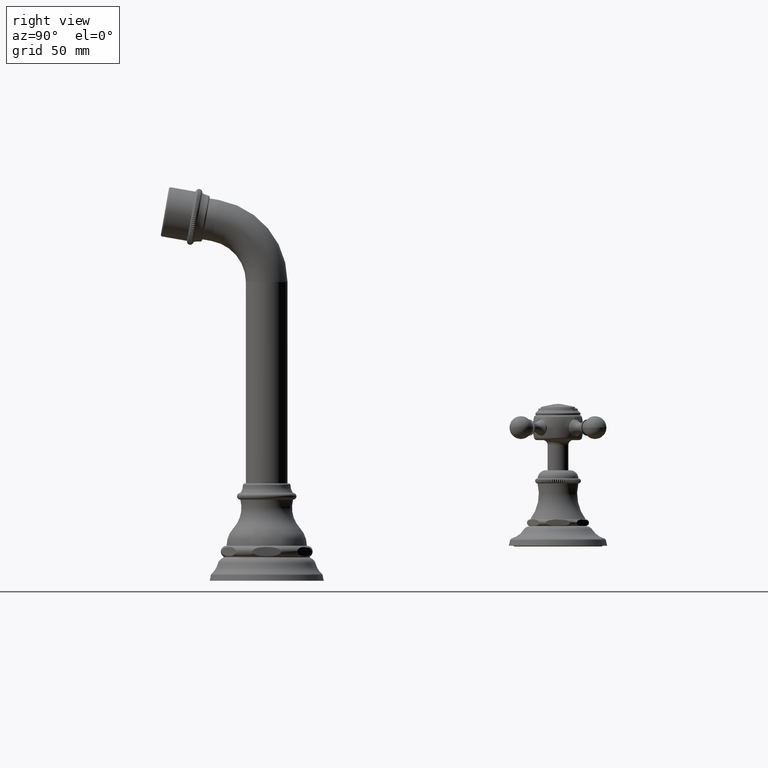
[diagram: clean part render]
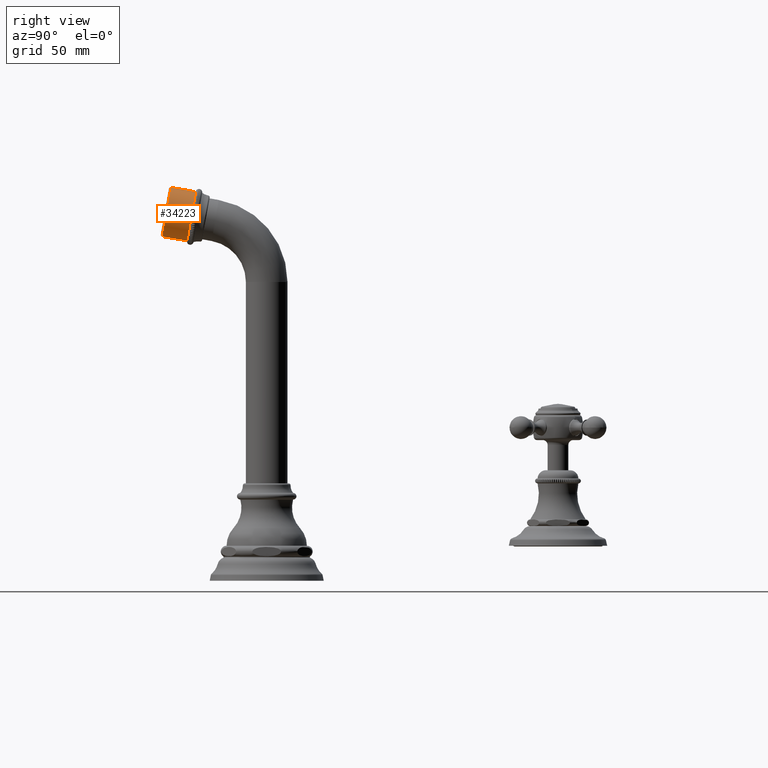
[diagram: same view with one face highlighted and labeled with its STEP entity id]
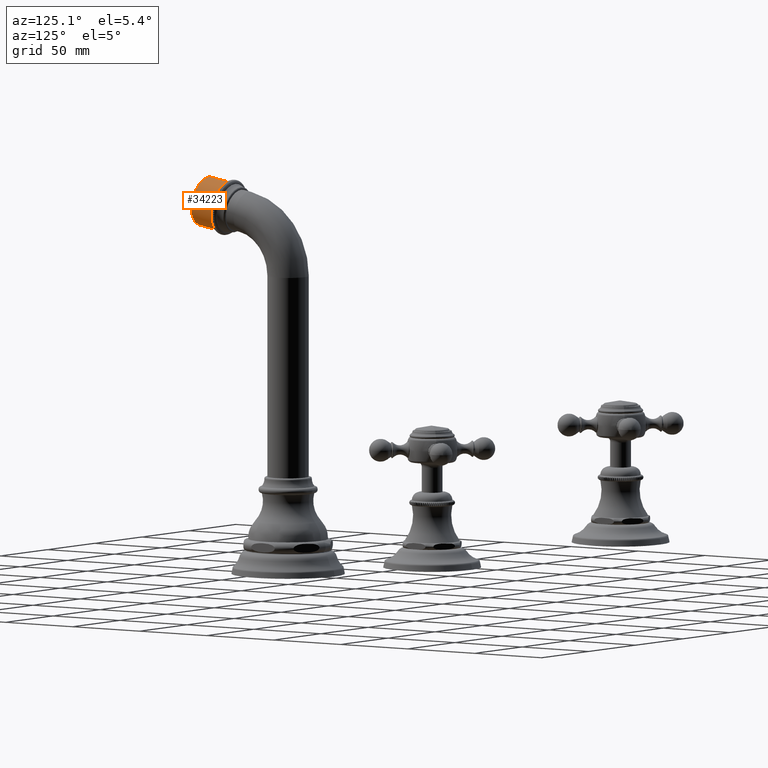
[diagram: same view with one face highlighted and labeled with its STEP entity id]
A machine part, right view. The second image highlights one B-rep face of the part: STEP entity #34223.
A second angle (auxiliary view) of the same face is appended — the face is thin or edge-on in the first view.
In plain terms, the highlighted cylindrical surface (edge-blend (fillet) strip) has radius 15.24 mm, axis along (0, -0.9848, 0.1736).
Its self-contained STEP definition (entity closure, byte-faithful):
#26671=CARTESIAN_POINT('',(0.E0,-1.812202875813E0,7.918189708289E0));
#26672=DIRECTION('',(0.E0,-9.848077530122E-1,1.736481776669E-1));
#26673=DIRECTION('',(0.E0,-1.736481776669E-1,-9.848077530122E-1));
#26674=AXIS2_PLACEMENT_3D('',#26671,#26672,#26673);
#31654=DIRECTION('',(1.360945872310E-13,9.848077530122E-1,-1.736481776669E-1));
#31655=VECTOR('',#31654,6.05E-1);
#31656=CARTESIAN_POINT('',(-8.217405549673E-14,-2.512200472986E0,
7.432362203970E0));
#31657=LINE('',#31656,#31655);
#31661=DIRECTION('',(-1.360642240872E-13,9.848077530122E-1,-1.736481776669E-1));
#31662=VECTOR('',#31661,6.05E-1);
#31663=CARTESIAN_POINT('',(8.233506773487E-14,-2.303822659785E0,
8.614131507585E0));
#31664=LINE('',#31663,#31662);
#31684=CARTESIAN_POINT('',(0.E0,-2.408011566386E0,8.023246855778E0));
#31685=DIRECTION('',(0.E0,9.848077530122E-1,-1.736481776669E-1));
#31686=DIRECTION('',(0.E0,1.736481776669E-1,9.848077530122E-1));
#31687=AXIS2_PLACEMENT_3D('',#31684,#31685,#31686);
#32342=CARTESIAN_POINT('',(0.E0,-1.708013969213E0,8.509074360097E0));
#32344=VERTEX_POINT('',#32342);
#32346=CARTESIAN_POINT('',(0.E0,-1.916391782413E0,7.327305056482E0));
#32347=VERTEX_POINT('',#32346);
#32554=CARTESIAN_POINT('',(0.E0,-2.512200472986E0,7.432362203970E0));
#32555=CARTESIAN_POINT('',(0.E0,-2.303822659785E0,8.614131507585E0));
#32556=VERTEX_POINT('',#32554);
#32557=VERTEX_POINT('',#32555);
#34212=CARTESIAN_POINT('',(0.E0,-1.413355735843E0,7.847862196334E0));
#34213=DIRECTION('',(0.E0,-9.848077530122E-1,1.736481776669E-1));
#34214=DIRECTION('',(0.E0,1.736481776669E-1,9.848077530122E-1));
#34215=AXIS2_PLACEMENT_3D('',#34212,#34213,#34214);
#34216=CYLINDRICAL_SURFACE('',#34215,6.E-1);
#34217=ORIENTED_EDGE('',*,*,#34196,.F.);
#34218=ORIENTED_EDGE('',*,*,#34157,.T.);
#34219=ORIENTED_EDGE('',*,*,#32634,.F.);
#34220=ORIENTED_EDGE('',*,*,#34154,.F.);
#34221=EDGE_LOOP('',(#34217,#34218,#34219,#34220));
#34222=FACE_OUTER_BOUND('',#34221,.F.);
#26675=CIRCLE('',#26674,6.E-1);
#31688=CIRCLE('',#31687,6.E-1);
#32634=EDGE_CURVE('',#32347,#32344,#26675,.T.);
#34154=EDGE_CURVE('',#32556,#32347,#31657,.T.);
#34157=EDGE_CURVE('',#32557,#32344,#31664,.T.);
#34196=EDGE_CURVE('',#32557,#32556,#31688,.T.);
#34223=ADVANCED_FACE('',(#34222),#34216,.T.);